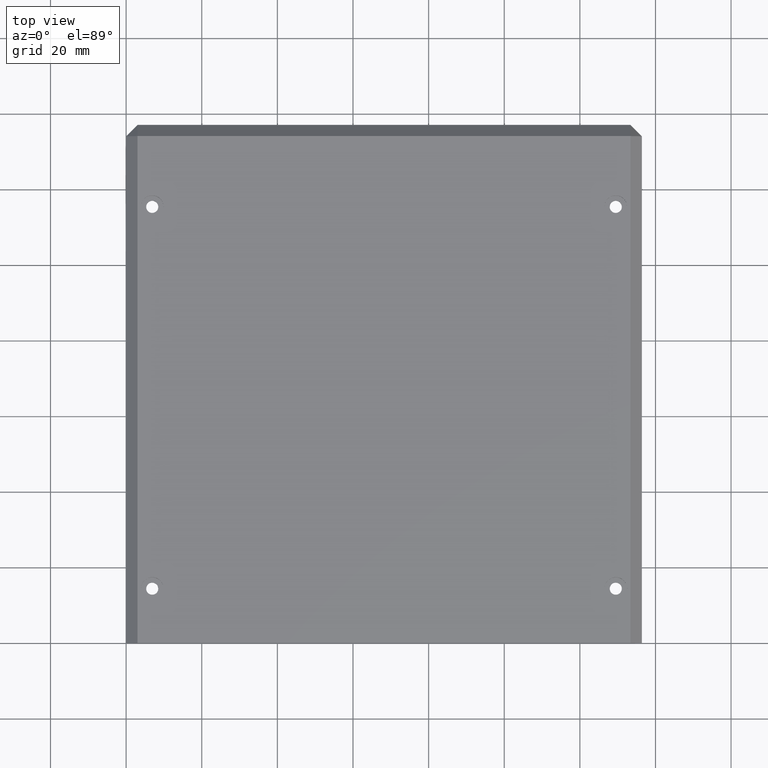
[diagram: clean part render]
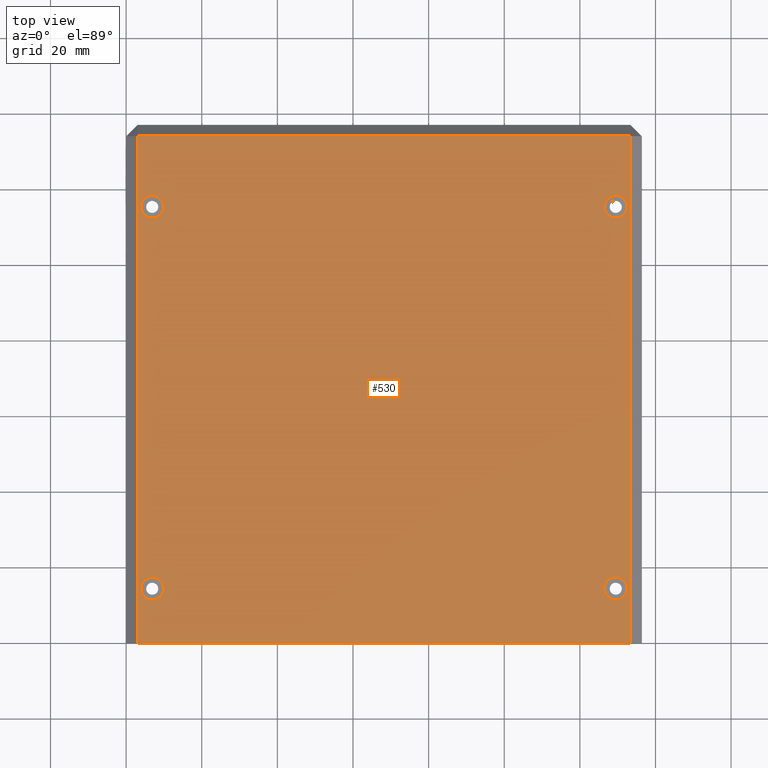
[diagram: same view with one face highlighted and labeled with its STEP entity id]
A machine part, top view. The second image highlights one B-rep face of the part: STEP entity #530.
In plain terms, the highlighted planar face has unit normal (0, 0, -1).
Its self-contained STEP definition (entity closure, byte-faithful):
#9 = CARTESIAN_POINT ( 'NONE',  ( 6.900000000000000400, 14.39999999999999700, 0.0000000000000000000 ) ) ;
#43 = AXIS2_PLACEMENT_3D ( 'NONE', #1434, #1056, #919 ) ;
#48 = ORIENTED_EDGE ( 'NONE', *, *, #340, .F. ) ;
#62 = VECTOR ( 'NONE', #407, 1000.000000000000000 ) ;
#69 = CARTESIAN_POINT ( 'NONE',  ( 133.3999999999999800, 134.0999999999999900, 0.0000000000000000000 ) ) ;
#87 = DIRECTION ( 'NONE',  ( 0.0000000000000000000, 0.0000000000000000000, 1.000000000000000000 ) ) ;
#89 = AXIS2_PLACEMENT_3D ( 'NONE', #877, #1573, #228 ) ;
#100 = EDGE_CURVE ( 'NONE', #1369, #1545, #561, .T. ) ;
#134 = VERTEX_POINT ( 'NONE', #815 ) ;
#147 = DIRECTION ( 'NONE',  ( 1.000000000000000000, 0.0000000000000000000, 0.0000000000000000000 ) ) ;
#160 = CARTESIAN_POINT ( 'NONE',  ( 133.3999999999999800, 137.0999999999999900, 0.0000000000000000000 ) ) ;
#171 = AXIS2_PLACEMENT_3D ( 'NONE', #485, #1358, #612 ) ;
#178 = CARTESIAN_POINT ( 'NONE',  ( 132.5000000000000000, 115.4000000000000100, 0.0000000000000000000 ) ) ;
#192 = VECTOR ( 'NONE', #500, 1000.000000000000000 ) ;
#198 = VERTEX_POINT ( 'NONE', #675 ) ;
#204 = CARTESIAN_POINT ( 'NONE',  ( 3.899999999999998600, 14.39999999999999700, 0.0000000000000000000 ) ) ;
#205 = DIRECTION ( 'NONE',  ( 0.0000000000000000000, 0.0000000000000000000, 1.000000000000000000 ) ) ;
#228 = DIRECTION ( 'NONE',  ( -1.000000000000000000, 0.0000000000000000000, -0.0000000000000000000 ) ) ;
#274 = ORIENTED_EDGE ( 'NONE', *, *, #1598, .F. ) ;
#279 = CARTESIAN_POINT ( 'NONE',  ( 133.3999999999999800, 0.0000000000000000000, 6.938893903907228400E-015 ) ) ;
#300 = EDGE_CURVE ( 'NONE', #1292, #347, #824, .T. ) ;
#316 = DIRECTION ( 'NONE',  ( 0.0000000000000000000, 0.0000000000000000000, 1.000000000000000000 ) ) ;
#339 = CARTESIAN_POINT ( 'NONE',  ( 0.0000000000000000000, 134.0999999999999900, 0.0000000000000000000 ) ) ;
#340 = EDGE_CURVE ( 'NONE', #504, #134, #1097, .T. ) ;
#347 = VERTEX_POINT ( 'NONE', #204 ) ;
#367 = ORIENTED_EDGE ( 'NONE', *, *, #1611, .T. ) ;
#402 = DIRECTION ( 'NONE',  ( 1.000000000000000000, 0.0000000000000000000, 0.0000000000000000000 ) ) ;
#403 = AXIS2_PLACEMENT_3D ( 'NONE', #1074, #316, #1200 ) ;
#407 = DIRECTION ( 'NONE',  ( -0.0000000000000000000, 1.000000000000000000, 0.0000000000000000000 ) ) ;
#432 = LINE ( 'NONE', #160, #62 ) ;
#465 = ORIENTED_EDGE ( 'NONE', *, *, #647, .F. ) ;
#473 = DIRECTION ( 'NONE',  ( 0.0000000000000000000, 0.0000000000000000000, 1.000000000000000000 ) ) ;
#485 = CARTESIAN_POINT ( 'NONE',  ( 129.4999999999999700, 14.39999999999999700, 0.0000000000000000000 ) ) ;
#495 = CARTESIAN_POINT ( 'NONE',  ( 6.899999999999989700, 115.4000000000000100, 0.0000000000000000000 ) ) ;
#500 = DIRECTION ( 'NONE',  ( 0.0000000000000000000, -1.000000000000000000, 0.0000000000000000000 ) ) ;
#504 = VERTEX_POINT ( 'NONE', #1610 ) ;
#510 = AXIS2_PLACEMENT_3D ( 'NONE', #495, #1370, #621 ) ;
#525 = CARTESIAN_POINT ( 'NONE',  ( 132.4999999999999700, 14.39999999999999700, 0.0000000000000000000 ) ) ;
#530 = ADVANCED_FACE ( 'NONE', ( #1332, #1221, #1186, #901, #821 ), #1618, .F. ) ;
#536 = VECTOR ( 'NONE', #1476, 1000.000000000000000 ) ;
#549 = EDGE_CURVE ( 'NONE', #1545, #1369, #552, .T. ) ;
#552 = CIRCLE ( 'NONE', #171, 3.000000000000002700 ) ;
#561 = CIRCLE ( 'NONE', #43, 3.000000000000002700 ) ;
#612 = DIRECTION ( 'NONE',  ( 1.000000000000000000, 0.0000000000000000000, 0.0000000000000000000 ) ) ;
#621 = DIRECTION ( 'NONE',  ( 1.000000000000000000, 0.0000000000000000000, 0.0000000000000000000 ) ) ;
#630 = EDGE_LOOP ( 'NONE', ( #968, #1269, #367, #1558 ) ) ;
#647 = EDGE_CURVE ( 'NONE', #134, #504, #859, .T. ) ;
#662 = AXIS2_PLACEMENT_3D ( 'NONE', #838, #87, #955 ) ;
#669 = EDGE_CURVE ( 'NONE', #1451, #756, #1447, .T. ) ;
#675 = CARTESIAN_POINT ( 'NONE',  ( 126.5000000000000000, 115.4000000000000100, 0.0000000000000000000 ) ) ;
#687 = VECTOR ( 'NONE', #402, 1000.000000000000000 ) ;
#722 = LINE ( 'NONE', #786, #687 ) ;
#756 = VERTEX_POINT ( 'NONE', #1245 ) ;
#786 = CARTESIAN_POINT ( 'NONE',  ( 0.0000000000000000000, 0.0000000000000000000, 0.0000000000000000000 ) ) ;
#801 = EDGE_CURVE ( 'NONE', #347, #1292, #1288, .T. ) ;
#815 = CARTESIAN_POINT ( 'NONE',  ( 3.899999999999989300, 115.4000000000000100, 0.0000000000000000000 ) ) ;
#816 = CARTESIAN_POINT ( 'NONE',  ( 126.4999999999999700, 14.39999999999999700, 0.0000000000000000000 ) ) ;
#821 = FACE_OUTER_BOUND ( 'NONE', #630, .T. ) ;
#824 = CIRCLE ( 'NONE', #403, 3.000000000000001800 ) ;
#832 = CARTESIAN_POINT ( 'NONE',  ( 3.000000000000002700, 134.0999999999999900, 0.0000000000000000000 ) ) ;
#838 = CARTESIAN_POINT ( 'NONE',  ( 6.899999999999989700, 115.4000000000000100, 0.0000000000000000000 ) ) ;
#859 = CIRCLE ( 'NONE', #510, 2.999999999999999100 ) ;
#877 = CARTESIAN_POINT ( 'NONE',  ( 0.0000000000000000000, 0.0000000000000000000, 0.0000000000000000000 ) ) ;
#894 = DIRECTION ( 'NONE',  ( 0.0000000000000000000, 0.0000000000000000000, 1.000000000000000000 ) ) ;
#901 = FACE_BOUND ( 'NONE', #1594, .T. ) ;
#919 = DIRECTION ( 'NONE',  ( 1.000000000000000000, 0.0000000000000000000, 0.0000000000000000000 ) ) ;
#950 = CARTESIAN_POINT ( 'NONE',  ( 129.5000000000000000, 115.4000000000000100, 0.0000000000000000000 ) ) ;
#953 = ORIENTED_EDGE ( 'NONE', *, *, #801, .F. ) ;
#955 = DIRECTION ( 'NONE',  ( 1.000000000000000000, 0.0000000000000000000, 0.0000000000000000000 ) ) ;
#968 = ORIENTED_EDGE ( 'NONE', *, *, #1011, .T. ) ;
#1011 = EDGE_CURVE ( 'NONE', #756, #1021, #722, .T. ) ;
#1021 = VERTEX_POINT ( 'NONE', #279 ) ;
#1024 = EDGE_CURVE ( 'NONE', #1021, #1417, #432, .T. ) ;
#1056 = DIRECTION ( 'NONE',  ( 0.0000000000000000000, 0.0000000000000000000, 1.000000000000000000 ) ) ;
#1057 = EDGE_LOOP ( 'NONE', ( #1100, #953 ) ) ;
#1074 = CARTESIAN_POINT ( 'NONE',  ( 6.900000000000000400, 14.39999999999999700, 0.0000000000000000000 ) ) ;
#1084 = DIRECTION ( 'NONE',  ( 1.000000000000000000, 0.0000000000000000000, 0.0000000000000000000 ) ) ;
#1097 = CIRCLE ( 'NONE', #662, 2.999999999999999100 ) ;
#1100 = ORIENTED_EDGE ( 'NONE', *, *, #300, .F. ) ;
#1124 = AXIS2_PLACEMENT_3D ( 'NONE', #950, #205, #1084 ) ;
#1186 = FACE_BOUND ( 'NONE', #1481, .T. ) ;
#1196 = LINE ( 'NONE', #339, #536 ) ;
#1200 = DIRECTION ( 'NONE',  ( 1.000000000000000000, 0.0000000000000000000, 0.0000000000000000000 ) ) ;
#1216 = EDGE_CURVE ( 'NONE', #1305, #198, #1333, .T. ) ;
#1218 = CARTESIAN_POINT ( 'NONE',  ( 129.5000000000000000, 115.4000000000000100, 0.0000000000000000000 ) ) ;
#1221 = FACE_BOUND ( 'NONE', #1326, .T. ) ;
#1236 = CIRCLE ( 'NONE', #1503, 3.000000000000002700 ) ;
#1245 = CARTESIAN_POINT ( 'NONE',  ( 3.000000000000002700, 0.0000000000000000000, 2.168404344971008900E-016 ) ) ;
#1269 = ORIENTED_EDGE ( 'NONE', *, *, #1024, .T. ) ;
#1288 = CIRCLE ( 'NONE', #1510, 3.000000000000001800 ) ;
#1292 = VERTEX_POINT ( 'NONE', #1337 ) ;
#1305 = VERTEX_POINT ( 'NONE', #178 ) ;
#1326 = EDGE_LOOP ( 'NONE', ( #1329, #1531 ) ) ;
#1329 = ORIENTED_EDGE ( 'NONE', *, *, #549, .F. ) ;
#1332 = FACE_BOUND ( 'NONE', #1057, .T. ) ;
#1333 = CIRCLE ( 'NONE', #1124, 3.000000000000002700 ) ;
#1337 = CARTESIAN_POINT ( 'NONE',  ( 9.900000000000002100, 14.39999999999999700, 0.0000000000000000000 ) ) ;
#1348 = DIRECTION ( 'NONE',  ( 1.000000000000000000, 0.0000000000000000000, 0.0000000000000000000 ) ) ;
#1349 = ORIENTED_EDGE ( 'NONE', *, *, #1216, .F. ) ;
#1358 = DIRECTION ( 'NONE',  ( 0.0000000000000000000, 0.0000000000000000000, 1.000000000000000000 ) ) ;
#1369 = VERTEX_POINT ( 'NONE', #816 ) ;
#1370 = DIRECTION ( 'NONE',  ( 0.0000000000000000000, 0.0000000000000000000, 1.000000000000000000 ) ) ;
#1379 = CARTESIAN_POINT ( 'NONE',  ( 3.000000000000002700, 0.0000000000000000000, 0.0000000000000000000 ) ) ;
#1417 = VERTEX_POINT ( 'NONE', #69 ) ;
#1434 = CARTESIAN_POINT ( 'NONE',  ( 129.4999999999999700, 14.39999999999999700, 0.0000000000000000000 ) ) ;
#1447 = LINE ( 'NONE', #1379, #192 ) ;
#1451 = VERTEX_POINT ( 'NONE', #832 ) ;
#1476 = DIRECTION ( 'NONE',  ( -1.000000000000000000, 0.0000000000000000000, 0.0000000000000000000 ) ) ;
#1481 = EDGE_LOOP ( 'NONE', ( #1349, #274 ) ) ;
#1503 = AXIS2_PLACEMENT_3D ( 'NONE', #1218, #473, #1348 ) ;
#1510 = AXIS2_PLACEMENT_3D ( 'NONE', #9, #894, #147 ) ;
#1531 = ORIENTED_EDGE ( 'NONE', *, *, #100, .F. ) ;
#1545 = VERTEX_POINT ( 'NONE', #525 ) ;
#1558 = ORIENTED_EDGE ( 'NONE', *, *, #669, .T. ) ;
#1573 = DIRECTION ( 'NONE',  ( 0.0000000000000000000, 0.0000000000000000000, -1.000000000000000000 ) ) ;
#1594 = EDGE_LOOP ( 'NONE', ( #48, #465 ) ) ;
#1598 = EDGE_CURVE ( 'NONE', #198, #1305, #1236, .T. ) ;
#1610 = CARTESIAN_POINT ( 'NONE',  ( 9.899999999999987900, 115.4000000000000100, 0.0000000000000000000 ) ) ;
#1611 = EDGE_CURVE ( 'NONE', #1417, #1451, #1196, .T. ) ;
#1618 = PLANE ( 'NONE',  #89 ) ;